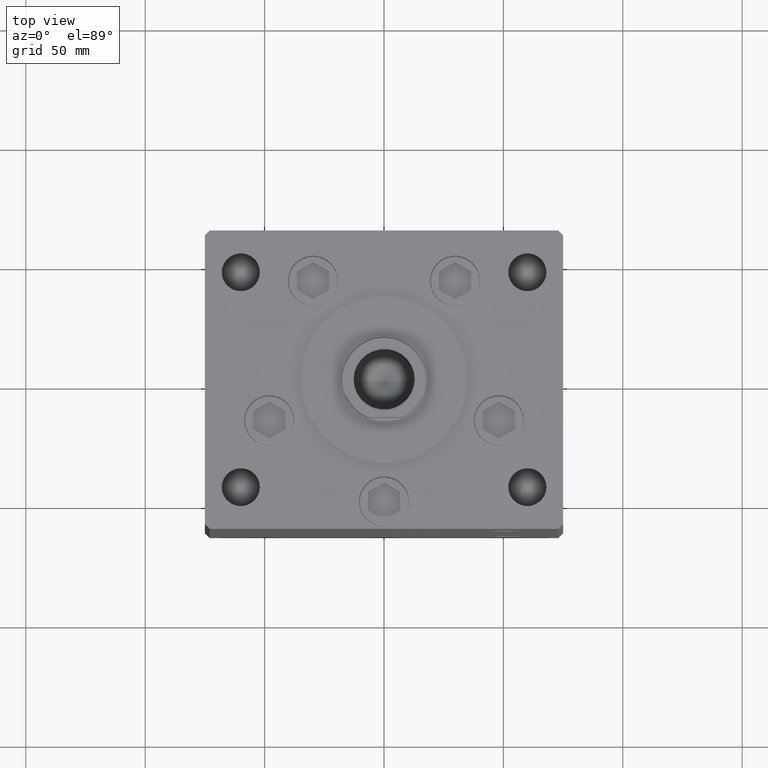
[diagram: clean part render]
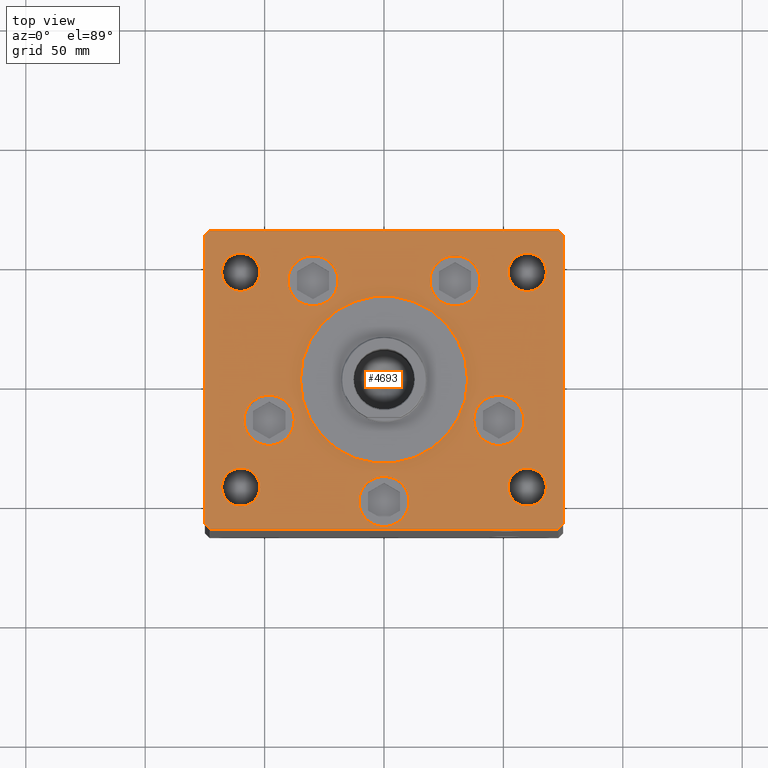
[diagram: same view with one face highlighted and labeled with its STEP entity id]
A machine part, top view. The second image highlights one B-rep face of the part: STEP entity #4693.
In plain terms, the highlighted planar face has unit normal (0, 0, 1).
Its self-contained STEP definition (entity closure, byte-faithful):
#70 = ORIENTED_EDGE ( 'NONE', *, *, #47322, .T. ) ;
#170 = FACE_BOUND ( 'NONE', #12515, .T. ) ;
#331 = VERTEX_POINT ( 'NONE', #18943 ) ;
#419 = EDGE_CURVE ( 'NONE', #17836, #34784, #473, .T. ) ;
#473 = LINE ( 'NONE', #4691, #26207 ) ;
#1413 = ORIENTED_EDGE ( 'NONE', *, *, #1814, .F. ) ;
#1444 = VERTEX_POINT ( 'NONE', #25748 ) ;
#1591 = AXIS2_PLACEMENT_3D ( 'NONE', #52021, #11965, #21692 ) ;
#1806 = DIRECTION ( 'NONE',  ( 0.000000000000000000, 0.000000000000000000, 1.000000000000000000 ) ) ;
#1814 = EDGE_CURVE ( 'NONE', #20714, #46473, #11108, .T. ) ;
#1924 = ORIENTED_EDGE ( 'NONE', *, *, #28019, .T. ) ;
#1941 = VECTOR ( 'NONE', #42012, 1000.000000000000000 ) ;
#2069 = ORIENTED_EDGE ( 'NONE', *, *, #23151, .F. ) ;
#2357 = ORIENTED_EDGE ( 'NONE', *, *, #43354, .F. ) ;
#2482 = LINE ( 'NONE', #10900, #9478 ) ;
#2641 = DIRECTION ( 'NONE',  ( -0.000000000000000000, -0.000000000000000000, -1.000000000000000000 ) ) ;
#2709 = CARTESIAN_POINT ( 'NONE',  ( -73.00000000000001421, -62.50000000000002842, 0.000000000000000000 ) ) ;
#2743 = DIRECTION ( 'NONE',  ( -1.000000000000000000, -1.901066822988281950E-16, 0.000000000000000000 ) ) ;
#2801 = EDGE_LOOP ( 'NONE', ( #20090, #46026 ) ) ;
#3189 = CARTESIAN_POINT ( 'NONE',  ( 75.00000000000001421, -60.49999999999992184, 0.000000000000000000 ) ) ;
#3211 = VERTEX_POINT ( 'NONE', #24138 ) ;
#3242 = ORIENTED_EDGE ( 'NONE', *, *, #9898, .T. ) ;
#3453 = CARTESIAN_POINT ( 'NONE',  ( -35.00000000000000711, -6.938893903907228378E-15, 0.000000000000000000 ) ) ;
#3487 = CARTESIAN_POINT ( 'NONE',  ( 29.73102073172061921, 41.43749999999997868, 0.000000000000000000 ) ) ;
#3580 = DIRECTION ( 'NONE',  ( 0.000000000000000000, 0.000000000000000000, 1.000000000000000000 ) ) ;
#3663 = CARTESIAN_POINT ( 'NONE',  ( 60.00000000000000711, -45.00000000000000000, 0.000000000000000000 ) ) ;
#3845 = EDGE_LOOP ( 'NONE', ( #32981, #5273 ) ) ;
#3868 = FACE_BOUND ( 'NONE', #39303, .T. ) ;
#3948 = CARTESIAN_POINT ( 'NONE',  ( 29.73102073172061921, 41.43749999999997868, 0.000000000000000000 ) ) ;
#4129 = AXIS2_PLACEMENT_3D ( 'NONE', #25600, #45877, #25863 ) ;
#4204 = CARTESIAN_POINT ( 'NONE',  ( -73.00000000000001421, -62.50000000000002842, 0.000000000000000000 ) ) ;
#4236 = CARTESIAN_POINT ( 'NONE',  ( 52.00000000000000000, -45.00000000000000000, 0.000000000000000000 ) ) ;
#4389 = AXIS2_PLACEMENT_3D ( 'NONE', #50865, #35529, #35016 ) ;
#4647 = EDGE_CURVE ( 'NONE', #47128, #1444, #16064, .T. ) ;
#4691 = CARTESIAN_POINT ( 'NONE',  ( 75.00000000000001421, 60.50000000000002842, 0.000000000000000000 ) ) ;
#4693 = ADVANCED_FACE ( 'NONE', ( #44400, #16758, #7821, #3868, #36240, #24659, #15970, #17024, #170, #32567, #32047 ), #37019, .T. ) ;
#5267 = VERTEX_POINT ( 'NONE', #5821 ) ;
#5273 = ORIENTED_EDGE ( 'NONE', *, *, #45643, .F. ) ;
#5319 = DIRECTION ( 'NONE',  ( 0.7071067811865474617, -0.7071067811865474617, 0.000000000000000000 ) ) ;
#5376 = DIRECTION ( 'NONE',  ( 0.000000000000000000, 0.000000000000000000, 1.000000000000000000 ) ) ;
#5383 = VERTEX_POINT ( 'NONE', #17029 ) ;
#5647 = CARTESIAN_POINT ( 'NONE',  ( 37.58326112068522917, -16.99999999999998934, 0.000000000000000000 ) ) ;
#5821 = CARTESIAN_POINT ( 'NONE',  ( -67.99999999999998579, 45.00000000000000711, 0.000000000000000000 ) ) ;
#6117 = VECTOR ( 'NONE', #22974, 999.9999999999998863 ) ;
#6366 = CARTESIAN_POINT ( 'NONE',  ( -60.00000000000000000, 45.00000000000000711, 0.000000000000000000 ) ) ;
#6370 = ORIENTED_EDGE ( 'NONE', *, *, #10949, .F. ) ;
#6489 = VERTEX_POINT ( 'NONE', #45219 ) ;
#6616 = DIRECTION ( 'NONE',  ( -1.000000000000000000, 0.000000000000000000, 0.000000000000000000 ) ) ;
#6664 = VECTOR ( 'NONE', #5319, 1000.000000000000114 ) ;
#7152 = CIRCLE ( 'NONE', #18922, 8.000000000000000000 ) ;
#7173 = VERTEX_POINT ( 'NONE', #49804 ) ;
#7410 = VECTOR ( 'NONE', #27843, 1000.000000000000000 ) ;
#7700 = AXIS2_PLACEMENT_3D ( 'NONE', #15689, #3580, #39383 ) ;
#7794 = ORIENTED_EDGE ( 'NONE', *, *, #39600, .T. ) ;
#7800 = VERTEX_POINT ( 'NONE', #3453 ) ;
#7821 = FACE_BOUND ( 'NONE', #10033, .T. ) ;
#7920 = VERTEX_POINT ( 'NONE', #36872 ) ;
#8327 = DIRECTION ( 'NONE',  ( 1.000000000000000000, 0.000000000000000000, 0.000000000000000000 ) ) ;
#8440 = ORIENTED_EDGE ( 'NONE', *, *, #42806, .T. ) ;
#8514 = EDGE_CURVE ( 'NONE', #7173, #12105, #11365, .T. ) ;
#9478 = VECTOR ( 'NONE', #2743, 1000.000000000000000 ) ;
#9898 = EDGE_CURVE ( 'NONE', #40601, #18996, #14622, .T. ) ;
#10033 = EDGE_LOOP ( 'NONE', ( #45424, #2069 ) ) ;
#10387 = EDGE_LOOP ( 'NONE', ( #18503, #31146 ) ) ;
#10398 = DIRECTION ( 'NONE',  ( -0.000000000000000000, -0.000000000000000000, -1.000000000000000000 ) ) ;
#10836 = CIRCLE ( 'NONE', #1591, 10.50000000000000178 ) ;
#10886 = ORIENTED_EDGE ( 'NONE', *, *, #30575, .F. ) ;
#10900 = CARTESIAN_POINT ( 'NONE',  ( 73.00000000000001421, 62.50000000000000000, 0.000000000000000000 ) ) ;
#10908 = DIRECTION ( 'NONE',  ( 1.000000000000000000, 0.000000000000000000, 0.000000000000000000 ) ) ;
#10949 = EDGE_CURVE ( 'NONE', #331, #43584, #27211, .T. ) ;
#11108 = CIRCLE ( 'NONE', #28739, 10.50000000000000178 ) ;
#11365 = LINE ( 'NONE', #27445, #6117 ) ;
#11769 = CARTESIAN_POINT ( 'NONE',  ( -75.00000000000000000, 60.50000000000000000, 0.000000000000000000 ) ) ;
#11965 = DIRECTION ( 'NONE',  ( 0.000000000000000000, 0.000000000000000000, 1.000000000000000000 ) ) ;
#12029 = DIRECTION ( 'NONE',  ( 0.000000000000000000, 0.000000000000000000, 1.000000000000000000 ) ) ;
#12105 = VERTEX_POINT ( 'NONE', #35848 ) ;
#12447 = AXIS2_PLACEMENT_3D ( 'NONE', #51383, #32115, #28167 ) ;
#12515 = EDGE_LOOP ( 'NONE', ( #35627, #46653 ) ) ;
#12813 = DIRECTION ( 'NONE',  ( 1.000000000000000000, 0.000000000000000000, 0.000000000000000000 ) ) ;
#12892 = EDGE_LOOP ( 'NONE', ( #10886, #2357 ) ) ;
#13606 = ORIENTED_EDGE ( 'NONE', *, *, #27534, .T. ) ;
#14072 = VERTEX_POINT ( 'NONE', #42009 ) ;
#14110 = CIRCLE ( 'NONE', #43530, 7.999999999999992895 ) ;
#14241 = DIRECTION ( 'NONE',  ( -1.000000000000000000, 0.000000000000000000, 0.000000000000000000 ) ) ;
#14276 = EDGE_LOOP ( 'NONE', ( #34969, #6370 ) ) ;
#14569 = DIRECTION ( 'NONE',  ( 1.000000000000000000, 7.604267291953125828E-16, 0.000000000000000000 ) ) ;
#14622 = LINE ( 'NONE', #46505, #1941 ) ;
#15432 = AXIS2_PLACEMENT_3D ( 'NONE', #43814, #16432, #48320 ) ;
#15460 = EDGE_CURVE ( 'NONE', #14072, #3211, #7152, .T. ) ;
#15689 = CARTESIAN_POINT ( 'NONE',  ( 60.00000000000000000, 45.00000000000000000, 0.000000000000000000 ) ) ;
#15970 = FACE_BOUND ( 'NONE', #36738, .T. ) ;
#16064 = CIRCLE ( 'NONE', #36242, 10.50000000000000000 ) ;
#16237 = DIRECTION ( 'NONE',  ( -0.000000000000000000, 0.000000000000000000, 1.000000000000000000 ) ) ;
#16246 = VERTEX_POINT ( 'NONE', #4204 ) ;
#16432 = DIRECTION ( 'NONE',  ( 0.000000000000000000, 0.000000000000000000, 1.000000000000000000 ) ) ;
#16758 = FACE_BOUND ( 'NONE', #12892, .T. ) ;
#17024 = FACE_BOUND ( 'NONE', #14276, .T. ) ;
#17029 = CARTESIAN_POINT ( 'NONE',  ( -58.58326112068523628, -16.99999999999998934, 0.000000000000000000 ) ) ;
#17836 = VERTEX_POINT ( 'NONE', #19034 ) ;
#18407 = CARTESIAN_POINT ( 'NONE',  ( -75.00000000000000000, 60.50000000000000000, 0.000000000000000000 ) ) ;
#18503 = ORIENTED_EDGE ( 'NONE', *, *, #4647, .F. ) ;
#18789 = ORIENTED_EDGE ( 'NONE', *, *, #40476, .T. ) ;
#18904 = EDGE_CURVE ( 'NONE', #46473, #20714, #31638, .T. ) ;
#18922 = AXIS2_PLACEMENT_3D ( 'NONE', #29464, #1806, #29731 ) ;
#18943 = CARTESIAN_POINT ( 'NONE',  ( 51.99999999999999289, 45.00000000000000000, 0.000000000000000000 ) ) ;
#18996 = VERTEX_POINT ( 'NONE', #18407 ) ;
#19034 = CARTESIAN_POINT ( 'NONE',  ( 75.00000000000001421, 60.50000000000002842, 0.000000000000000000 ) ) ;
#19141 = ORIENTED_EDGE ( 'NONE', *, *, #18904, .F. ) ;
#20068 = DIRECTION ( 'NONE',  ( 1.000000000000000000, 0.000000000000000000, 0.000000000000000000 ) ) ;
#20075 = VECTOR ( 'NONE', #14569, 1000.000000000000000 ) ;
#20090 = ORIENTED_EDGE ( 'NONE', *, *, #27660, .F. ) ;
#20714 = VERTEX_POINT ( 'NONE', #26478 ) ;
#21692 = DIRECTION ( 'NONE',  ( 1.000000000000000000, 0.000000000000000000, 0.000000000000000000 ) ) ;
#21808 = CIRCLE ( 'NONE', #26030, 10.50000000000000178 ) ;
#22151 = CARTESIAN_POINT ( 'NONE',  ( -60.00000000000000000, 45.00000000000000711, 0.000000000000000000 ) ) ;
#22197 = EDGE_CURVE ( 'NONE', #50840, #28075, #37523, .T. ) ;
#22759 = AXIS2_PLACEMENT_3D ( 'NONE', #50978, #10398, #38816 ) ;
#22828 = AXIS2_PLACEMENT_3D ( 'NONE', #6366, #34536, #6616 ) ;
#22974 = DIRECTION ( 'NONE',  ( 0.7071067811865489050, 0.7071067811865462405, 0.000000000000000000 ) ) ;
#23151 = EDGE_CURVE ( 'NONE', #6489, #30783, #51845, .T. ) ;
#23183 = DIRECTION ( 'NONE',  ( 0.000000000000000000, 0.000000000000000000, 1.000000000000000000 ) ) ;
#23615 = CIRCLE ( 'NONE', #22759, 8.000000000000007105 ) ;
#24062 = DIRECTION ( 'NONE',  ( 0.000000000000000000, 0.000000000000000000, 1.000000000000000000 ) ) ;
#24138 = CARTESIAN_POINT ( 'NONE',  ( -52.00000000000000711, -45.00000000000000000, 0.000000000000000000 ) ) ;
#24257 = VERTEX_POINT ( 'NONE', #32532 ) ;
#24527 = CARTESIAN_POINT ( 'NONE',  ( -75.00000000000000000, -60.50000000000004263, 0.000000000000000000 ) ) ;
#24659 = FACE_BOUND ( 'NONE', #2801, .T. ) ;
#25046 = AXIS2_PLACEMENT_3D ( 'NONE', #40264, #23183, #39225 ) ;
#25600 = CARTESIAN_POINT ( 'NONE',  ( -60.00000000000000711, -45.00000000000000000, 0.000000000000000000 ) ) ;
#25748 = CARTESIAN_POINT ( 'NONE',  ( -10.50000000000000000, -51.00000000000000000, 0.000000000000000000 ) ) ;
#25863 = DIRECTION ( 'NONE',  ( 1.000000000000000000, 0.000000000000000000, 0.000000000000000000 ) ) ;
#26030 = AXIS2_PLACEMENT_3D ( 'NONE', #33823, #5376, #41711 ) ;
#26068 = ORIENTED_EDGE ( 'NONE', *, *, #30753, .T. ) ;
#26207 = VECTOR ( 'NONE', #47908, 1000.000000000000000 ) ;
#26268 = CARTESIAN_POINT ( 'NONE',  ( -40.23102073172061921, 41.43749999999997868, 0.000000000000000000 ) ) ;
#26411 = CARTESIAN_POINT ( 'NONE',  ( -72.99999999999998579, 62.49999999999997158, 0.000000000000000000 ) ) ;
#26478 = CARTESIAN_POINT ( 'NONE',  ( 58.58326112068523628, -16.99999999999998934, 0.000000000000000000 ) ) ;
#26754 = CIRCLE ( 'NONE', #25046, 10.50000000000000000 ) ;
#27073 = LINE ( 'NONE', #11769, #7410 ) ;
#27211 = CIRCLE ( 'NONE', #15432, 8.000000000000007105 ) ;
#27350 = ORIENTED_EDGE ( 'NONE', *, *, #8514, .T. ) ;
#27356 = ORIENTED_EDGE ( 'NONE', *, *, #22197, .T. ) ;
#27411 = VERTEX_POINT ( 'NONE', #24527 ) ;
#27445 = CARTESIAN_POINT ( 'NONE',  ( 73.00000000000001421, -62.49999999999991473, 0.000000000000000000 ) ) ;
#27534 = EDGE_CURVE ( 'NONE', #7920, #5267, #14110, .T. ) ;
#27660 = EDGE_CURVE ( 'NONE', #34672, #5383, #37671, .T. ) ;
#27661 = EDGE_CURVE ( 'NONE', #1444, #47128, #26754, .T. ) ;
#27843 = DIRECTION ( 'NONE',  ( 0.000000000000000000, -1.000000000000000000, 0.000000000000000000 ) ) ;
#27938 = AXIS2_PLACEMENT_3D ( 'NONE', #51744, #24062, #10908 ) ;
#28019 = EDGE_CURVE ( 'NONE', #18996, #27411, #27073, .T. ) ;
#28075 = VERTEX_POINT ( 'NONE', #48912 ) ;
#28167 = DIRECTION ( 'NONE',  ( 1.000000000000000000, 0.000000000000000000, 0.000000000000000000 ) ) ;
#28739 = AXIS2_PLACEMENT_3D ( 'NONE', #42701, #41925, #29830 ) ;
#29118 = AXIS2_PLACEMENT_3D ( 'NONE', #3948, #32389, #48465 ) ;
#29464 = CARTESIAN_POINT ( 'NONE',  ( -60.00000000000000711, -45.00000000000000000, 0.000000000000000000 ) ) ;
#29731 = DIRECTION ( 'NONE',  ( 1.000000000000000000, 0.000000000000000000, 0.000000000000000000 ) ) ;
#29830 = DIRECTION ( 'NONE',  ( 1.000000000000000000, 0.000000000000000000, 0.000000000000000000 ) ) ;
#30065 = LINE ( 'NONE', #33244, #6664 ) ;
#30089 = EDGE_LOOP ( 'NONE', ( #18789, #27356 ) ) ;
#30128 = EDGE_LOOP ( 'NONE', ( #36934, #26068, #27350, #7794, #49531, #70, #3242, #1924 ) ) ;
#30575 = EDGE_CURVE ( 'NONE', #31563, #37643, #10836, .T. ) ;
#30753 = EDGE_CURVE ( 'NONE', #16246, #7173, #42726, .T. ) ;
#30783 = VERTEX_POINT ( 'NONE', #39039 ) ;
#31146 = ORIENTED_EDGE ( 'NONE', *, *, #27661, .F. ) ;
#31374 = LINE ( 'NONE', #3189, #36986 ) ;
#31503 = CARTESIAN_POINT ( 'NONE',  ( 68.00000000000000000, 45.00000000000000000, 0.000000000000000000 ) ) ;
#31563 = VERTEX_POINT ( 'NONE', #34588 ) ;
#31638 = CIRCLE ( 'NONE', #35836, 10.50000000000000178 ) ;
#32047 = FACE_BOUND ( 'NONE', #30089, .T. ) ;
#32069 = CIRCLE ( 'NONE', #7700, 8.000000000000007105 ) ;
#32115 = DIRECTION ( 'NONE',  ( 0.000000000000000000, 0.000000000000000000, 1.000000000000000000 ) ) ;
#32389 = DIRECTION ( 'NONE',  ( 0.000000000000000000, 0.000000000000000000, 1.000000000000000000 ) ) ;
#32532 = CARTESIAN_POINT ( 'NONE',  ( 35.00000000000000711, -2.652630106891490698E-15, 0.000000000000000000 ) ) ;
#32567 = FACE_OUTER_BOUND ( 'NONE', #30128, .T. ) ;
#32698 = EDGE_CURVE ( 'NONE', #27411, #16246, #30065, .T. ) ;
#32746 = CIRCLE ( 'NONE', #4129, 8.000000000000000000 ) ;
#32796 = CARTESIAN_POINT ( 'NONE',  ( 10.50000000000000000, -51.00000000000000000, 0.000000000000000000 ) ) ;
#32981 = ORIENTED_EDGE ( 'NONE', *, *, #44219, .F. ) ;
#33244 = CARTESIAN_POINT ( 'NONE',  ( -75.00000000000000000, -60.50000000000004263, 0.000000000000000000 ) ) ;
#33823 = CARTESIAN_POINT ( 'NONE',  ( -48.08326112068523628, -16.99999999999998934, 0.000000000000000000 ) ) ;
#34536 = DIRECTION ( 'NONE',  ( -0.000000000000000000, -0.000000000000000000, -1.000000000000000000 ) ) ;
#34588 = CARTESIAN_POINT ( 'NONE',  ( -19.23102073172061566, 41.43749999999997868, 0.000000000000000000 ) ) ;
#34672 = VERTEX_POINT ( 'NONE', #45654 ) ;
#34784 = VERTEX_POINT ( 'NONE', #48515 ) ;
#34969 = ORIENTED_EDGE ( 'NONE', *, *, #43529, .F. ) ;
#35016 = DIRECTION ( 'NONE',  ( 1.000000000000000000, 0.000000000000000000, 0.000000000000000000 ) ) ;
#35047 = DIRECTION ( 'NONE',  ( 0.000000000000000000, 0.000000000000000000, 1.000000000000000000 ) ) ;
#35301 = CARTESIAN_POINT ( 'NONE',  ( 48.08326112068523628, -16.99999999999998934, 0.000000000000000000 ) ) ;
#35529 = DIRECTION ( 'NONE',  ( 0.000000000000000000, 0.000000000000000000, 1.000000000000000000 ) ) ;
#35627 = ORIENTED_EDGE ( 'NONE', *, *, #36216, .F. ) ;
#35836 = AXIS2_PLACEMENT_3D ( 'NONE', #35301, #35047, #47691 ) ;
#35848 = CARTESIAN_POINT ( 'NONE',  ( 75.00000000000001421, -60.49999999999992184, 0.000000000000000000 ) ) ;
#35991 = EDGE_CURVE ( 'NONE', #5383, #34672, #21808, .T. ) ;
#36216 = EDGE_CURVE ( 'NONE', #3211, #14072, #32746, .T. ) ;
#36240 = FACE_BOUND ( 'NONE', #10387, .T. ) ;
#36242 = AXIS2_PLACEMENT_3D ( 'NONE', #40195, #12029, #12813 ) ;
#36262 = CIRCLE ( 'NONE', #22828, 7.999999999999992895 ) ;
#36738 = EDGE_LOOP ( 'NONE', ( #13606, #8440 ) ) ;
#36872 = CARTESIAN_POINT ( 'NONE',  ( -52.00000000000000000, 45.00000000000000711, 0.000000000000000000 ) ) ;
#36934 = ORIENTED_EDGE ( 'NONE', *, *, #32698, .T. ) ;
#36986 = VECTOR ( 'NONE', #43205, 1000.000000000000000 ) ;
#37019 = PLANE ( 'NONE',  #46389 ) ;
#37523 = CIRCLE ( 'NONE', #51031, 8.000000000000007105 ) ;
#37569 = DIRECTION ( 'NONE',  ( 1.000000000000000000, 0.000000000000000000, 0.000000000000000000 ) ) ;
#37643 = VERTEX_POINT ( 'NONE', #26268 ) ;
#37671 = CIRCLE ( 'NONE', #12447, 10.50000000000000178 ) ;
#37921 = CIRCLE ( 'NONE', #47202, 10.50000000000000178 ) ;
#38816 = DIRECTION ( 'NONE',  ( -1.000000000000000000, 0.000000000000000000, 0.000000000000000000 ) ) ;
#39039 = CARTESIAN_POINT ( 'NONE',  ( 40.23102073172061921, 41.43749999999997868, 0.000000000000000000 ) ) ;
#39225 = DIRECTION ( 'NONE',  ( 1.000000000000000000, 0.000000000000000000, 0.000000000000000000 ) ) ;
#39303 = EDGE_LOOP ( 'NONE', ( #1413, #19141 ) ) ;
#39383 = DIRECTION ( 'NONE',  ( 1.000000000000000000, 0.000000000000000000, 0.000000000000000000 ) ) ;
#39600 = EDGE_CURVE ( 'NONE', #12105, #17836, #31374, .T. ) ;
#39824 = DIRECTION ( 'NONE',  ( 0.000000000000000000, 0.000000000000000000, 1.000000000000000000 ) ) ;
#40195 = CARTESIAN_POINT ( 'NONE',  ( 0.000000000000000000, -51.00000000000000000, 0.000000000000000000 ) ) ;
#40264 = CARTESIAN_POINT ( 'NONE',  ( 0.000000000000000000, -51.00000000000000000, 0.000000000000000000 ) ) ;
#40476 = EDGE_CURVE ( 'NONE', #28075, #50840, #23615, .T. ) ;
#40559 = CIRCLE ( 'NONE', #4389, 35.00000000000000711 ) ;
#40601 = VERTEX_POINT ( 'NONE', #26411 ) ;
#40976 = CARTESIAN_POINT ( 'NONE',  ( 0.000000000000000000, 0.000000000000000000, 0.000000000000000000 ) ) ;
#41002 = CARTESIAN_POINT ( 'NONE',  ( -29.73102073172061921, 41.43749999999997868, 0.000000000000000000 ) ) ;
#41690 = EDGE_CURVE ( 'NONE', #30783, #6489, #37921, .T. ) ;
#41711 = DIRECTION ( 'NONE',  ( 1.000000000000000000, 0.000000000000000000, 0.000000000000000000 ) ) ;
#41925 = DIRECTION ( 'NONE',  ( 0.000000000000000000, 0.000000000000000000, 1.000000000000000000 ) ) ;
#42009 = CARTESIAN_POINT ( 'NONE',  ( -68.00000000000000000, -45.00000000000000000, 0.000000000000000000 ) ) ;
#42012 = DIRECTION ( 'NONE',  ( -0.7071067811865549002, -0.7071067811865401342, 0.000000000000000000 ) ) ;
#42701 = CARTESIAN_POINT ( 'NONE',  ( 48.08326112068523628, -16.99999999999998934, 0.000000000000000000 ) ) ;
#42726 = LINE ( 'NONE', #2709, #20075 ) ;
#42806 = EDGE_CURVE ( 'NONE', #5267, #7920, #36262, .T. ) ;
#43205 = DIRECTION ( 'NONE',  ( 0.000000000000000000, 1.000000000000000000, 0.000000000000000000 ) ) ;
#43354 = EDGE_CURVE ( 'NONE', #37643, #31563, #49769, .T. ) ;
#43427 = DIRECTION ( 'NONE',  ( -0.000000000000000000, -0.000000000000000000, -1.000000000000000000 ) ) ;
#43529 = EDGE_CURVE ( 'NONE', #43584, #331, #32069, .T. ) ;
#43530 = AXIS2_PLACEMENT_3D ( 'NONE', #22151, #2641, #14241 ) ;
#43584 = VERTEX_POINT ( 'NONE', #31503 ) ;
#43814 = CARTESIAN_POINT ( 'NONE',  ( 60.00000000000000000, 45.00000000000000000, 0.000000000000000000 ) ) ;
#44219 = EDGE_CURVE ( 'NONE', #7800, #24257, #48101, .T. ) ;
#44400 = FACE_BOUND ( 'NONE', #3845, .T. ) ;
#44685 = AXIS2_PLACEMENT_3D ( 'NONE', #41002, #45480, #37569 ) ;
#45219 = CARTESIAN_POINT ( 'NONE',  ( 19.23102073172061566, 41.43749999999997868, 0.000000000000000000 ) ) ;
#45424 = ORIENTED_EDGE ( 'NONE', *, *, #41690, .F. ) ;
#45480 = DIRECTION ( 'NONE',  ( 0.000000000000000000, 0.000000000000000000, 1.000000000000000000 ) ) ;
#45643 = EDGE_CURVE ( 'NONE', #24257, #7800, #40559, .T. ) ;
#45654 = CARTESIAN_POINT ( 'NONE',  ( -37.58326112068522917, -16.99999999999998934, 0.000000000000000000 ) ) ;
#45877 = DIRECTION ( 'NONE',  ( 0.000000000000000000, 0.000000000000000000, 1.000000000000000000 ) ) ;
#46026 = ORIENTED_EDGE ( 'NONE', *, *, #35991, .F. ) ;
#46389 = AXIS2_PLACEMENT_3D ( 'NONE', #40976, #16237, #8327 ) ;
#46473 = VERTEX_POINT ( 'NONE', #5647 ) ;
#46505 = CARTESIAN_POINT ( 'NONE',  ( -72.99999999999998579, 62.49999999999997158, 0.000000000000000000 ) ) ;
#46653 = ORIENTED_EDGE ( 'NONE', *, *, #15460, .F. ) ;
#47128 = VERTEX_POINT ( 'NONE', #32796 ) ;
#47202 = AXIS2_PLACEMENT_3D ( 'NONE', #3487, #39824, #20068 ) ;
#47322 = EDGE_CURVE ( 'NONE', #34784, #40601, #2482, .T. ) ;
#47691 = DIRECTION ( 'NONE',  ( 1.000000000000000000, 0.000000000000000000, 0.000000000000000000 ) ) ;
#47908 = DIRECTION ( 'NONE',  ( -0.7071067811865524577, 0.7071067811865426878, 0.000000000000000000 ) ) ;
#48101 = CIRCLE ( 'NONE', #27938, 35.00000000000000711 ) ;
#48320 = DIRECTION ( 'NONE',  ( 1.000000000000000000, 0.000000000000000000, 0.000000000000000000 ) ) ;
#48465 = DIRECTION ( 'NONE',  ( 1.000000000000000000, 0.000000000000000000, 0.000000000000000000 ) ) ;
#48515 = CARTESIAN_POINT ( 'NONE',  ( 73.00000000000001421, 62.50000000000000000, 0.000000000000000000 ) ) ;
#48912 = CARTESIAN_POINT ( 'NONE',  ( 68.00000000000000000, -45.00000000000000000, 0.000000000000000000 ) ) ;
#49531 = ORIENTED_EDGE ( 'NONE', *, *, #419, .T. ) ;
#49769 = CIRCLE ( 'NONE', #44685, 10.50000000000000178 ) ;
#49804 = CARTESIAN_POINT ( 'NONE',  ( 73.00000000000001421, -62.49999999999991473, 0.000000000000000000 ) ) ;
#50840 = VERTEX_POINT ( 'NONE', #4236 ) ;
#50865 = CARTESIAN_POINT ( 'NONE',  ( 0.000000000000000000, -6.938893903907228378E-15, 0.000000000000000000 ) ) ;
#50978 = CARTESIAN_POINT ( 'NONE',  ( 60.00000000000000711, -45.00000000000000000, 0.000000000000000000 ) ) ;
#51031 = AXIS2_PLACEMENT_3D ( 'NONE', #3663, #43427, #51372 ) ;
#51372 = DIRECTION ( 'NONE',  ( -1.000000000000000000, 0.000000000000000000, 0.000000000000000000 ) ) ;
#51383 = CARTESIAN_POINT ( 'NONE',  ( -48.08326112068523628, -16.99999999999998934, 0.000000000000000000 ) ) ;
#51744 = CARTESIAN_POINT ( 'NONE',  ( 0.000000000000000000, -6.938893903907228378E-15, 0.000000000000000000 ) ) ;
#51845 = CIRCLE ( 'NONE', #29118, 10.50000000000000178 ) ;
#52021 = CARTESIAN_POINT ( 'NONE',  ( -29.73102073172061921, 41.43749999999997868, 0.000000000000000000 ) ) ;